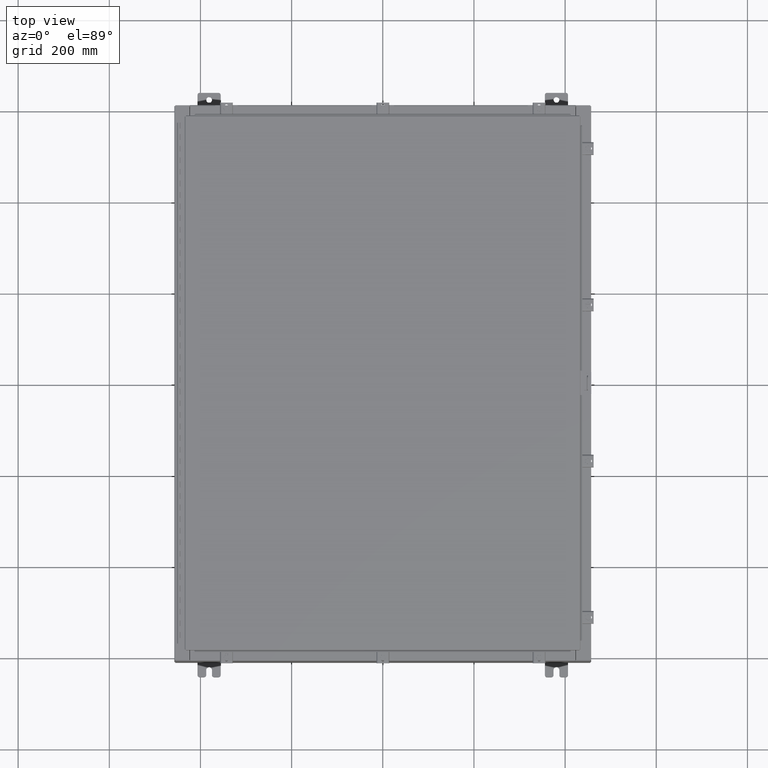
[diagram: clean part render]
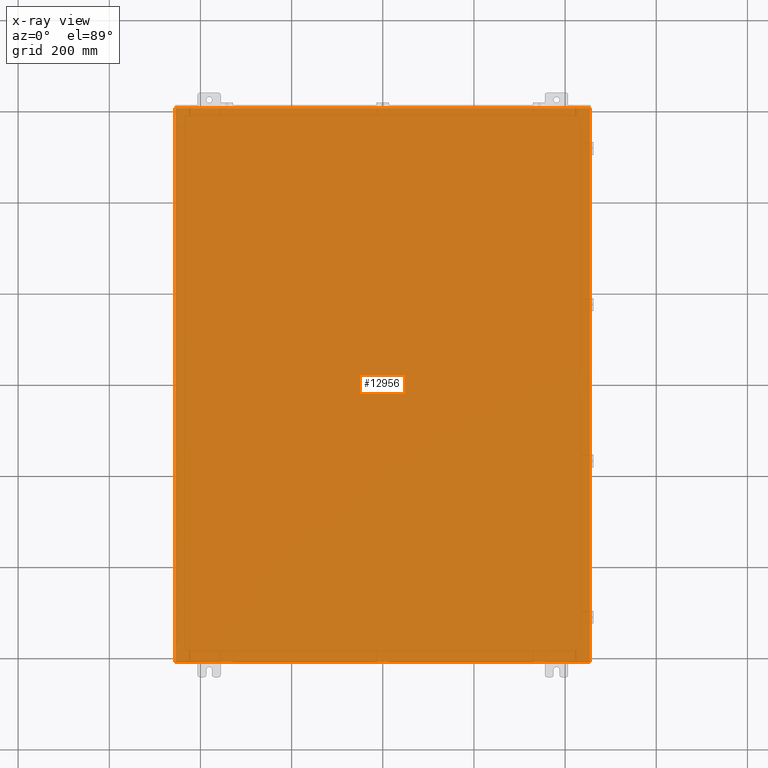
[diagram: x-ray — body ghosted, one internal face saturated and labeled with its STEP entity id]
A machine part, top view, then the same camera in x-ray: the body is ghosted and one INTERNAL B-rep face — a face not visible from any outside direction — is saturated and labeled: STEP entity #12956.
In plain terms, the highlighted planar face has unit normal (0, 0, -1).
Its self-contained STEP definition (entity closure, byte-faithful):
#1590 = VERTEX_POINT ( 'NONE', #28230 ) ;
#3196 = CARTESIAN_POINT ( 'NONE',  ( -17.91230000000000500, -23.92529999999998900, 4.481938114605432000E-017 ) ) ;
#4622 = ORIENTED_EDGE ( 'NONE', *, *, #19313, .T. ) ;
#5662 = FACE_OUTER_BOUND ( 'NONE', #40878, .T. ) ;
#5989 = DIRECTION ( 'NONE',  ( -0.0000000000000000000, 1.000000000000000000, -0.0000000000000000000 ) ) ;
#6164 = LINE ( 'NONE', #3196, #26968 ) ;
#7294 = LINE ( 'NONE', #45923, #8633 ) ;
#8633 = VECTOR ( 'NONE', #33442, 39.37007874015748100 ) ;
#9196 = CARTESIAN_POINT ( 'NONE',  ( -17.91230000000000500, -23.92529999999998600, 4.481938114605432000E-017 ) ) ;
#12276 = EDGE_CURVE ( 'NONE', #44162, #14371, #6164, .T. ) ;
#12956 = ADVANCED_FACE ( 'NONE', ( #5662 ), #36559, .F. ) ;
#13268 = VERTEX_POINT ( 'NONE', #18187 ) ;
#14371 = VERTEX_POINT ( 'NONE', #51326 ) ;
#16882 = DIRECTION ( 'NONE',  ( -1.000000000000000000, -0.0000000000000000000, -0.0000000000000000000 ) ) ;
#17060 = ORIENTED_EDGE ( 'NONE', *, *, #50233, .T. ) ;
#17955 = CARTESIAN_POINT ( 'NONE',  ( -18.00000000000000400, -23.92530000000000400, 0.0000000000000000000 ) ) ;
#18187 = CARTESIAN_POINT ( 'NONE',  ( 17.91229999999999500, -23.92529999999998900, -8.238229105893793900E-016 ) ) ;
#19313 = EDGE_CURVE ( 'NONE', #44162, #13268, #28477, .T. ) ;
#21381 = VECTOR ( 'NONE', #22093, 39.37007874015748100 ) ;
#22093 = DIRECTION ( 'NONE',  ( 1.000000000000000000, 1.214154663850783700E-016, 0.0000000000000000000 ) ) ;
#26968 = VECTOR ( 'NONE', #5989, 39.37007874015748100 ) ;
#27742 = DIRECTION ( 'NONE',  ( -1.000000000000000000, 0.0000000000000000000, -0.0000000000000000000 ) ) ;
#28230 = CARTESIAN_POINT ( 'NONE',  ( 17.91229999999999500, 23.92529999999998600, 3.103208580302999200E-015 ) ) ;
#28429 = LINE ( 'NONE', #41723, #49229 ) ;
#28477 = LINE ( 'NONE', #17955, #21381 ) ;
#31189 = EDGE_CURVE ( 'NONE', #1590, #13268, #7294, .T. ) ;
#32250 = AXIS2_PLACEMENT_3D ( 'NONE', #34957, #39886, #27742 ) ;
#33233 = ORIENTED_EDGE ( 'NONE', *, *, #12276, .F. ) ;
#33442 = DIRECTION ( 'NONE',  ( -0.0000000000000000000, -1.000000000000000000, -8.208677865577646300E-017 ) ) ;
#34957 = CARTESIAN_POINT ( 'NONE',  ( 0.0000000000000000000, 0.0000000000000000000, 0.0000000000000000000 ) ) ;
#36559 = PLANE ( 'NONE',  #32250 ) ;
#39886 = DIRECTION ( 'NONE',  ( 0.0000000000000000000, 0.0000000000000000000, -1.000000000000000000 ) ) ;
#40344 = ORIENTED_EDGE ( 'NONE', *, *, #31189, .F. ) ;
#40878 = EDGE_LOOP ( 'NONE', ( #33233, #4622, #40344, #17060 ) ) ;
#41723 = CARTESIAN_POINT ( 'NONE',  ( -18.00000000000000400, 23.92530000000000000, 0.0000000000000000000 ) ) ;
#44162 = VERTEX_POINT ( 'NONE', #9196 ) ;
#45923 = CARTESIAN_POINT ( 'NONE',  ( 17.91229999999999500, 23.92529999999998900, 3.103208580302999200E-015 ) ) ;
#49229 = VECTOR ( 'NONE', #16882, 39.37007874015748100 ) ;
#50233 = EDGE_CURVE ( 'NONE', #1590, #14371, #28429, .T. ) ;
#51326 = CARTESIAN_POINT ( 'NONE',  ( -17.91230000000000500, 23.92529999999998900, 4.481938114605432000E-017 ) ) ;